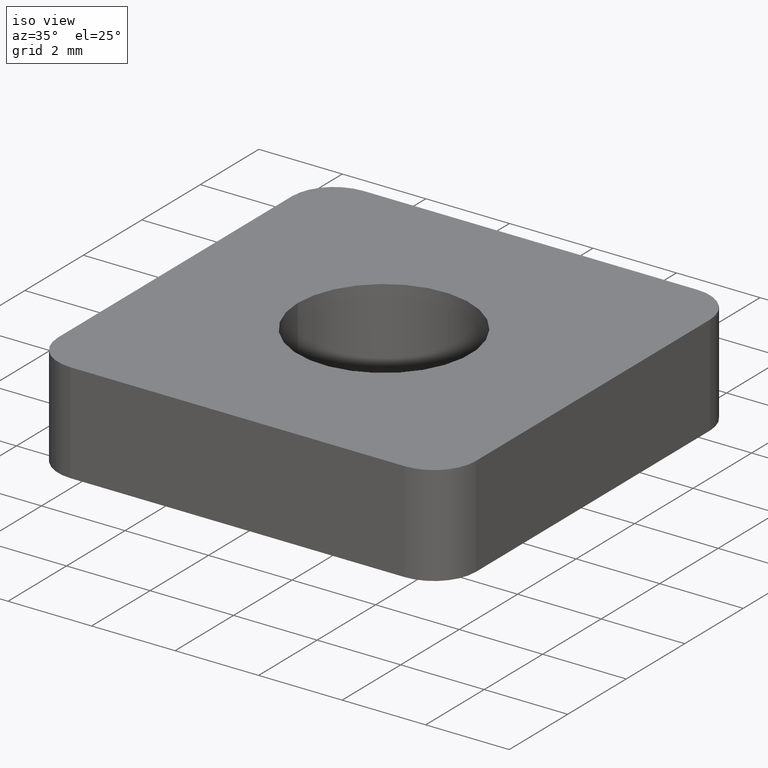
[diagram: clean part render]
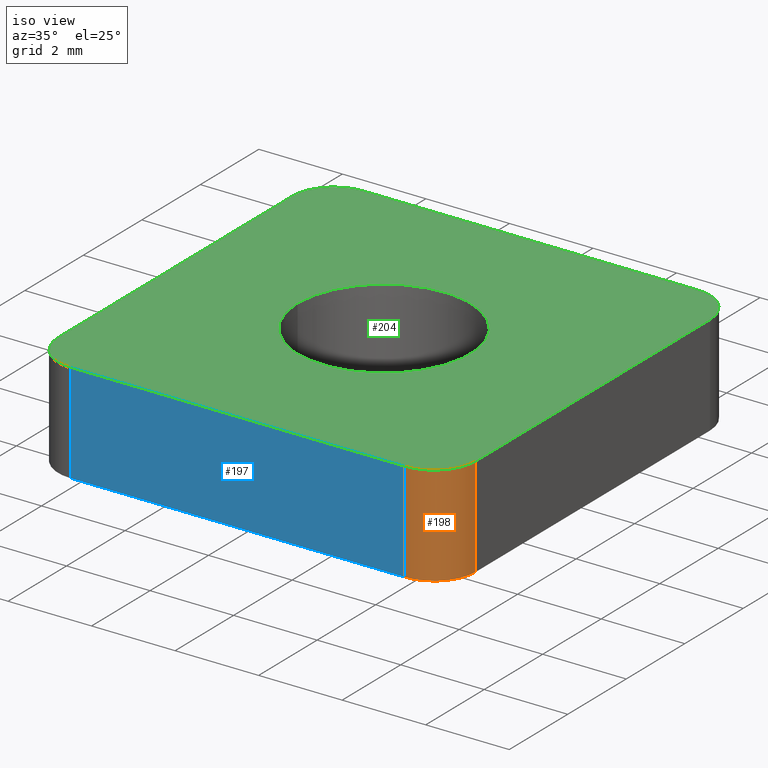
[diagram: same view with three faces highlighted in distinct colors, each labeled with its STEP entity id]
A machine part, iso view with three faces highlighted in distinct colors.
Their STEP definitions:

[orange] entity #198 — the highlighted cylindrical surface (partial cylindrical patch) has radius 1 mm, axis along (0, 0, 1).
#26=FACE_OUTER_BOUND('',#37,.T.);
#37=EDGE_LOOP('',(#148,#149,#150,#151));
#51=LINE('',#331,#68);
#53=LINE('',#337,#70);
#68=VECTOR('',#270,2.4);
#70=VECTOR('',#276,2.4);
#85=CIRCLE('',#237,1.);
#86=CIRCLE('',#238,1.);
#97=VERTEX_POINT('',#328);
#98=VERTEX_POINT('',#330);
#99=VERTEX_POINT('',#334);
#100=VERTEX_POINT('',#336);
#117=EDGE_CURVE('',#98,#97,#51,.T.);
#119=EDGE_CURVE('',#97,#99,#85,.T.);
#120=EDGE_CURVE('',#100,#99,#53,.T.);
#121=EDGE_CURVE('',#98,#100,#86,.T.);
#148=ORIENTED_EDGE('',*,*,#117,.T.);
#149=ORIENTED_EDGE('',*,*,#119,.T.);
#150=ORIENTED_EDGE('',*,*,#120,.F.);
#151=ORIENTED_EDGE('',*,*,#121,.F.);
#192=CYLINDRICAL_SURFACE('',#236,1.);
#198=ADVANCED_FACE('',(#26),#192,.T.);
#236=AXIS2_PLACEMENT_3D('',#333,#272,#273);
#237=AXIS2_PLACEMENT_3D('',#335,#274,#275);
#238=AXIS2_PLACEMENT_3D('',#338,#277,#278);
#270=DIRECTION('',(0.,0.,-1.));
#272=DIRECTION('center_axis',(0.,0.,1.));
#273=DIRECTION('ref_axis',(0.,-1.,0.));
#274=DIRECTION('center_axis',(0.,0.,1.));
#275=DIRECTION('ref_axis',(1.,0.,0.));
#276=DIRECTION('',(0.,0.,-1.));
#277=DIRECTION('center_axis',(0.,0.,1.));
#278=DIRECTION('ref_axis',(1.,0.,0.));
#328=CARTESIAN_POINT('',(4.,-4.99999999999988,-2.4));
#330=CARTESIAN_POINT('',(4.,-4.99999999999988,0.));
#331=CARTESIAN_POINT('',(4.,-4.99999999999988,0.));
#333=CARTESIAN_POINT('Origin',(4.,-3.99999999999989,0.));
#334=CARTESIAN_POINT('',(5.,-3.99999999999989,-2.4));
#335=CARTESIAN_POINT('Origin',(4.,-3.99999999999989,-2.4));
#336=CARTESIAN_POINT('',(5.,-3.99999999999989,0.));
#337=CARTESIAN_POINT('',(5.,-3.99999999999989,0.));
#338=CARTESIAN_POINT('Origin',(4.,-3.99999999999989,0.));

[blue] entity #197 — the highlighted planar face has unit normal (0, 1, 0).
#17=PLANE('',#235);
#25=FACE_OUTER_BOUND('',#36,.T.);
#36=EDGE_LOOP('',(#144,#145,#146,#147));
#49=LINE('',#325,#66);
#50=LINE('',#329,#67);
#51=LINE('',#331,#68);
#52=LINE('',#332,#69);
#66=VECTOR('',#264,2.4);
#67=VECTOR('',#269,8.);
#68=VECTOR('',#270,2.4);
#69=VECTOR('',#271,8.);
#95=VERTEX_POINT('',#322);
#96=VERTEX_POINT('',#324);
#97=VERTEX_POINT('',#328);
#98=VERTEX_POINT('',#330);
#114=EDGE_CURVE('',#96,#95,#49,.T.);
#116=EDGE_CURVE('',#95,#97,#50,.T.);
#117=EDGE_CURVE('',#98,#97,#51,.T.);
#118=EDGE_CURVE('',#96,#98,#52,.T.);
#144=ORIENTED_EDGE('',*,*,#114,.T.);
#145=ORIENTED_EDGE('',*,*,#116,.T.);
#146=ORIENTED_EDGE('',*,*,#117,.F.);
#147=ORIENTED_EDGE('',*,*,#118,.F.);
#197=ADVANCED_FACE('',(#25),#17,.F.);
#235=AXIS2_PLACEMENT_3D('',#327,#267,#268);
#264=DIRECTION('',(0.,0.,-1.));
#267=DIRECTION('center_axis',(0.,1.,0.));
#268=DIRECTION('ref_axis',(0.,0.,1.));
#269=DIRECTION('',(1.,0.,0.));
#270=DIRECTION('',(0.,0.,-1.));
#271=DIRECTION('',(1.,0.,0.));
#322=CARTESIAN_POINT('',(-4.,-5.,-2.4));
#324=CARTESIAN_POINT('',(-4.,-5.,0.));
#325=CARTESIAN_POINT('',(-4.,-5.,0.));
#327=CARTESIAN_POINT('Origin',(-4.,-5.,0.));
#328=CARTESIAN_POINT('',(4.,-4.99999999999988,-2.4));
#329=CARTESIAN_POINT('',(-4.,-5.,-2.4));
#330=CARTESIAN_POINT('',(4.,-4.99999999999988,0.));
#331=CARTESIAN_POINT('',(4.,-4.99999999999988,0.));
#332=CARTESIAN_POINT('',(-4.,-5.,0.));

[green] entity #204 — the highlighted planar face has unit normal (0, 0, 1).
#15=FACE_BOUND('',#44,.T.);
#21=PLANE('',#248);
#32=FACE_OUTER_BOUND('',#43,.T.);
#43=EDGE_LOOP('',(#172,#173,#174,#175,#176,#177,#178,#179));
#44=EDGE_LOOP('',(#180));
#52=LINE('',#332,#69);
#56=LINE('',#344,#73);
#60=LINE('',#356,#77);
#63=LINE('',#365,#80);
#69=VECTOR('',#271,8.);
#73=VECTOR('',#283,7.99999999999989);
#77=VECTOR('',#295,8.);
#80=VECTOR('',#306,7.99999999999989);
#81=CIRCLE('',#230,2.067);
#84=CIRCLE('',#234,1.);
#86=CIRCLE('',#238,1.);
#88=CIRCLE('',#242,1.);
#90=CIRCLE('',#246,1.);
#91=VERTEX_POINT('',#313);
#93=VERTEX_POINT('',#319);
#96=VERTEX_POINT('',#324);
#98=VERTEX_POINT('',#330);
#100=VERTEX_POINT('',#336);
#102=VERTEX_POINT('',#342);
#104=VERTEX_POINT('',#348);
#106=VERTEX_POINT('',#354);
#108=VERTEX_POINT('',#360);
#109=EDGE_CURVE('',#91,#91,#81,.T.);
#115=EDGE_CURVE('',#93,#96,#84,.T.);
#118=EDGE_CURVE('',#96,#98,#52,.T.);
#121=EDGE_CURVE('',#98,#100,#86,.T.);
#124=EDGE_CURVE('',#100,#102,#56,.T.);
#127=EDGE_CURVE('',#102,#104,#88,.T.);
#130=EDGE_CURVE('',#104,#106,#60,.T.);
#133=EDGE_CURVE('',#106,#108,#90,.T.);
#135=EDGE_CURVE('',#108,#93,#63,.T.);
#172=ORIENTED_EDGE('',*,*,#115,.T.);
#173=ORIENTED_EDGE('',*,*,#118,.T.);
#174=ORIENTED_EDGE('',*,*,#121,.T.);
#175=ORIENTED_EDGE('',*,*,#124,.T.);
#176=ORIENTED_EDGE('',*,*,#127,.T.);
#177=ORIENTED_EDGE('',*,*,#130,.T.);
#178=ORIENTED_EDGE('',*,*,#133,.T.);
#179=ORIENTED_EDGE('',*,*,#135,.T.);
#180=ORIENTED_EDGE('',*,*,#109,.T.);
#204=ADVANCED_FACE('',(#32,#15),#21,.T.);
#230=AXIS2_PLACEMENT_3D('',#314,#254,#255);
#234=AXIS2_PLACEMENT_3D('',#326,#265,#266);
#238=AXIS2_PLACEMENT_3D('',#338,#277,#278);
#242=AXIS2_PLACEMENT_3D('',#350,#289,#290);
#246=AXIS2_PLACEMENT_3D('',#362,#301,#302);
#248=AXIS2_PLACEMENT_3D('',#366,#307,#308);
#254=DIRECTION('center_axis',(0.,0.,-1.));
#255=DIRECTION('ref_axis',(1.,1.4432899320127E-14,0.));
#265=DIRECTION('center_axis',(0.,0.,1.));
#266=DIRECTION('ref_axis',(1.,0.,0.));
#271=DIRECTION('',(1.,0.,0.));
#277=DIRECTION('center_axis',(0.,0.,1.));
#278=DIRECTION('ref_axis',(1.,0.,0.));
#283=DIRECTION('',(0.,1.,0.));
#289=DIRECTION('center_axis',(0.,0.,1.));
#290=DIRECTION('ref_axis',(1.,0.,0.));
#295=DIRECTION('',(-1.,0.,0.));
#301=DIRECTION('center_axis',(0.,0.,1.));
#302=DIRECTION('ref_axis',(1.,0.,0.));
#306=DIRECTION('',(0.,-1.,0.));
#307=DIRECTION('center_axis',(0.,0.,1.));
#308=DIRECTION('ref_axis',(1.,0.,0.));
#313=CARTESIAN_POINT('',(-2.067,-3.00859373880864E-14,0.));
#314=CARTESIAN_POINT('Origin',(0.,0.,0.));
#319=CARTESIAN_POINT('',(-5.,-4.,0.));
#324=CARTESIAN_POINT('',(-4.,-5.,0.));
#326=CARTESIAN_POINT('Origin',(-4.,-4.,0.));
#330=CARTESIAN_POINT('',(4.,-4.99999999999988,0.));
#332=CARTESIAN_POINT('',(-4.,-5.,0.));
#336=CARTESIAN_POINT('',(5.,-3.99999999999989,0.));
#338=CARTESIAN_POINT('Origin',(4.,-3.99999999999989,0.));
#342=CARTESIAN_POINT('',(5.,4.,0.));
#344=CARTESIAN_POINT('',(5.,-3.99999999999989,0.));
#348=CARTESIAN_POINT('',(4.,5.,0.));
#350=CARTESIAN_POINT('Origin',(4.,4.,0.));
#354=CARTESIAN_POINT('',(-4.,4.99999999999988,0.));
#356=CARTESIAN_POINT('',(4.,5.,0.));
#360=CARTESIAN_POINT('',(-5.,3.99999999999989,0.));
#362=CARTESIAN_POINT('Origin',(-4.,3.99999999999989,0.));
#365=CARTESIAN_POINT('',(-5.,3.99999999999989,0.));
#366=CARTESIAN_POINT('Origin',(-6.00012000264004,-6.00012000261563,0.));